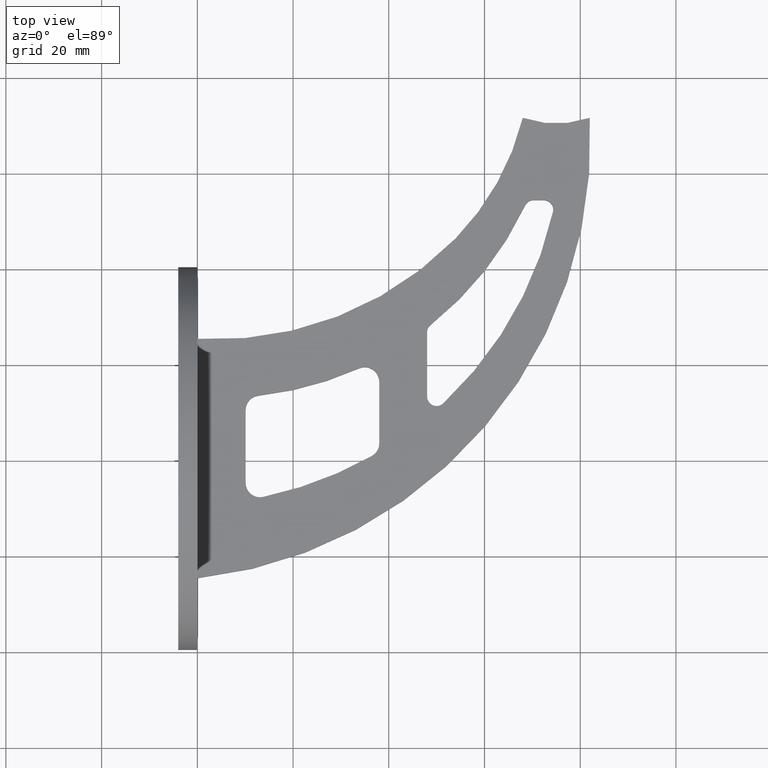
[diagram: clean part render]
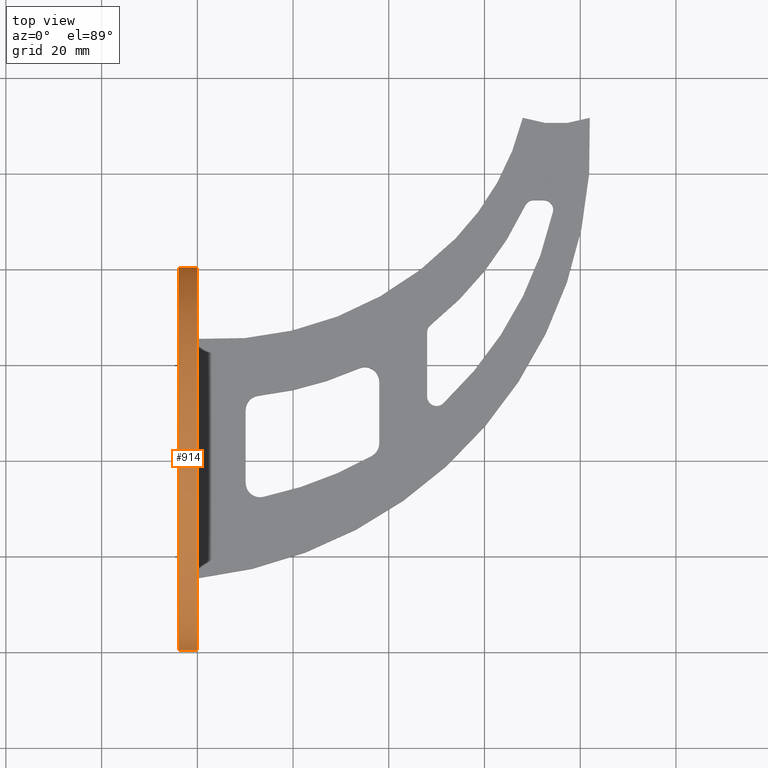
[diagram: same view with one face highlighted and labeled with its STEP entity id]
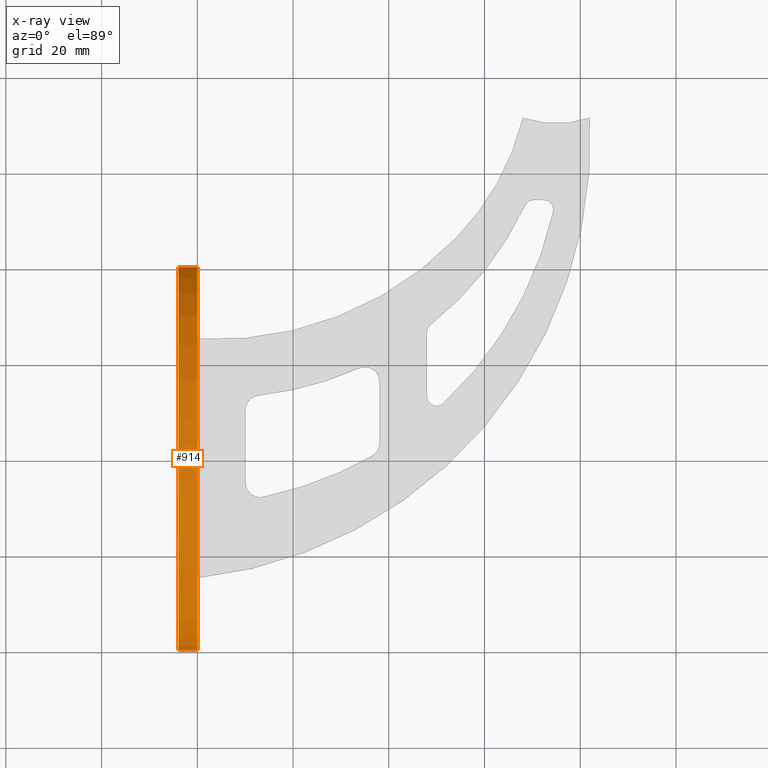
[diagram: x-ray of the same camera — body ghosted, the highlighted face saturated]
A machine part, top view. The second image highlights one B-rep face of the part: STEP entity #914.
The next image is the same camera in x-ray: the body ghosted, the highlighted face saturated — about 0% of this face is hidden behind the body in this view.
In plain terms, the highlighted face is a freeform B-spline surface patch.
Its self-contained STEP definition (entity closure, byte-faithful):
#560 = CARTESIAN_POINT ( 'NONE',  ( -3.999999999996803002, 40.00000000000037659, 0.000000000000000000 ) ) ;
#606 = CARTESIAN_POINT ( 'NONE',  ( -3.999999999996802558, 40.00000000000037659, 59.99999999999999289 ) ) ;
#664 = CARTESIAN_POINT ( 'NONE',  ( -4.000000000003197442, -39.99999999999973710, -3.673940397442059178E-15 ) ) ;
#914 = ADVANCED_FACE ( 'NONE', ( #5085 ), #6314, .F. ) ;
#2244 = CARTESIAN_POINT ( 'NONE',  ( 3.197442310920455683E-12, 40.00000000000005684, 0.000000000000000000 ) ) ;
#2628 = EDGE_CURVE ( 'NONE', #11922, #12400, #5388, .T. ) ;
#3151 = VECTOR ( 'NONE', #6999, 1000.000000000000000 ) ;
#3441 = EDGE_CURVE ( 'NONE', #8695, #4218, #11372, .T. ) ;
#3491 = CARTESIAN_POINT ( 'NONE',  ( -4.000000000003197442, -39.99999999999973710, -3.673940397442059178E-15 ) ) ;
#3502 = ORIENTED_EDGE ( 'NONE', *, *, #4737, .T. ) ;
#4218 = VERTEX_POINT ( 'NONE', #2244 ) ;
#4536 = CARTESIAN_POINT ( 'NONE',  ( -3.197442310920455683E-12, -40.00000000000005684, -3.673940397442059178E-15 ) ) ;
#4737 = EDGE_CURVE ( 'NONE', #11922, #8695, #9734, .T. ) ;
#5077 = DIRECTION ( 'NONE',  ( 1.000000000000000000, -7.993605777301128353E-14, -0.000000000000000000 ) ) ;
#5085 = FACE_OUTER_BOUND ( 'NONE', #12110, .T. ) ;
#5388 =( BOUNDED_CURVE ( )  B_SPLINE_CURVE ( 3, ( #3491, #9242, #11144, #7416 ),
 .UNSPECIFIED., .F., .F. ) 
 B_SPLINE_CURVE_WITH_KNOTS ( ( 4, 4 ),
 ( 3.141592653589793116, 6.283185307179586232 ),
 .UNSPECIFIED. ) 
 CURVE ( )  GEOMETRIC_REPRESENTATION_ITEM ( )  RATIONAL_B_SPLINE_CURVE ( ( 1.000000000000000000, 0.3333333333333333703, 0.3333333333333333703, 1.000000000000000000 ) ) 
 REPRESENTATION_ITEM ( '' )  );
#5869 = CARTESIAN_POINT ( 'NONE',  ( -3.999999999996803002, 40.00000000000037659, 0.000000000000000000 ) ) ;
#6314 =( BOUNDED_SURFACE ( )  B_SPLINE_SURFACE ( 3, 1, ( 
 ( #10230, #10282 ),
 ( #11223, #6427 ),
 ( #606, #12190 ),
 ( #560, #7403 ) ),
 .UNSPECIFIED., .F., .F., .F. ) 
 B_SPLINE_SURFACE_WITH_KNOTS ( ( 4, 4 ),
 ( 2, 2 ),
 ( 0.000000000000000000, 1.000000000000000000 ),
 ( 0.000000000000000000, 1.000000000000000000 ),
 .UNSPECIFIED. ) 
 GEOMETRIC_REPRESENTATION_ITEM ( )  RATIONAL_B_SPLINE_SURFACE ( (
 ( 1.000000000000000000, 1.000000000000000000),
 ( 0.3333333333333333703, 0.3333333333333333703),
 ( 0.3333333333333333703, 0.3333333333333333703),
 ( 1.000000000000000000, 1.000000000000000000) ) ) 
 REPRESENTATION_ITEM ( '' )  SURFACE ( )  );
#6427 = CARTESIAN_POINT ( 'NONE',  ( -3.197312206659752172E-12, -40.00000000000005684, 59.99999999999998579 ) ) ;
#6784 = LINE ( 'NONE', #5869, #3151 ) ;
#6857 = CARTESIAN_POINT ( 'NONE',  ( -4.000000000003197442, -39.99999999999973710, -3.673940397442059178E-15 ) ) ;
#6893 = ORIENTED_EDGE ( 'NONE', *, *, #10176, .F. ) ;
#6999 = DIRECTION ( 'NONE',  ( 1.000000000000000000, -7.993605777301128353E-14, -0.000000000000000000 ) ) ;
#7032 = ORIENTED_EDGE ( 'NONE', *, *, #3441, .T. ) ;
#7403 = CARTESIAN_POINT ( 'NONE',  ( 3.197095366225255475E-12, 40.00000000000005684, 0.000000000000000000 ) ) ;
#7416 = CARTESIAN_POINT ( 'NONE',  ( -3.999999999996803002, 40.00000000000037659, 0.000000000000000000 ) ) ;
#7459 = CARTESIAN_POINT ( 'NONE',  ( -3.197442310920456491E-12, -40.00000000000006395, 59.99999999999998579 ) ) ;
#7703 = ORIENTED_EDGE ( 'NONE', *, *, #2628, .F. ) ;
#8052 = VECTOR ( 'NONE', #5077, 1000.000000000000000 ) ;
#8695 = VERTEX_POINT ( 'NONE', #4536 ) ;
#9133 = CARTESIAN_POINT ( 'NONE',  ( -3.999999999996803002, 40.00000000000037659, 0.000000000000000000 ) ) ;
#9242 = CARTESIAN_POINT ( 'NONE',  ( -4.000000000003197442, -39.99999999999974420, 59.99999999999998579 ) ) ;
#9363 = CARTESIAN_POINT ( 'NONE',  ( -3.197442310920455683E-12, -40.00000000000005684, -3.673940397442059178E-15 ) ) ;
#9403 = CARTESIAN_POINT ( 'NONE',  ( 3.197442310920456087E-12, 40.00000000000005684, 60.00000000000000711 ) ) ;
#9734 = LINE ( 'NONE', #6857, #8052 ) ;
#10176 = EDGE_CURVE ( 'NONE', #12400, #4218, #6784, .T. ) ;
#10230 = CARTESIAN_POINT ( 'NONE',  ( -4.000000000003197442, -39.99999999999973710, -3.673940397442059178E-15 ) ) ;
#10282 = CARTESIAN_POINT ( 'NONE',  ( -3.197095366225255475E-12, -40.00000000000005684, -3.673940397442059178E-15 ) ) ;
#11144 = CARTESIAN_POINT ( 'NONE',  ( -3.999999999996803446, 40.00000000000037659, 60.00000000000000711 ) ) ;
#11223 = CARTESIAN_POINT ( 'NONE',  ( -4.000000000003197442, -39.99999999999974420, 59.99999999999998579 ) ) ;
#11314 = CARTESIAN_POINT ( 'NONE',  ( 3.197442310920455683E-12, 40.00000000000005684, 0.000000000000000000 ) ) ;
#11372 =( BOUNDED_CURVE ( )  B_SPLINE_CURVE ( 3, ( #9363, #7459, #9403, #11314 ),
 .UNSPECIFIED., .F., .F. ) 
 B_SPLINE_CURVE_WITH_KNOTS ( ( 4, 4 ),
 ( 3.141592653589793116, 6.283185307179586232 ),
 .UNSPECIFIED. ) 
 CURVE ( )  GEOMETRIC_REPRESENTATION_ITEM ( )  RATIONAL_B_SPLINE_CURVE ( ( 1.000000000000000000, 0.3333333333333333703, 0.3333333333333333703, 1.000000000000000000 ) ) 
 REPRESENTATION_ITEM ( '' )  );
#11922 = VERTEX_POINT ( 'NONE', #664 ) ;
#12110 = EDGE_LOOP ( 'NONE', ( #7703, #3502, #7032, #6893 ) ) ;
#12190 = CARTESIAN_POINT ( 'NONE',  ( 3.197312206659752172E-12, 40.00000000000005684, 59.99999999999999289 ) ) ;
#12400 = VERTEX_POINT ( 'NONE', #9133 ) ;